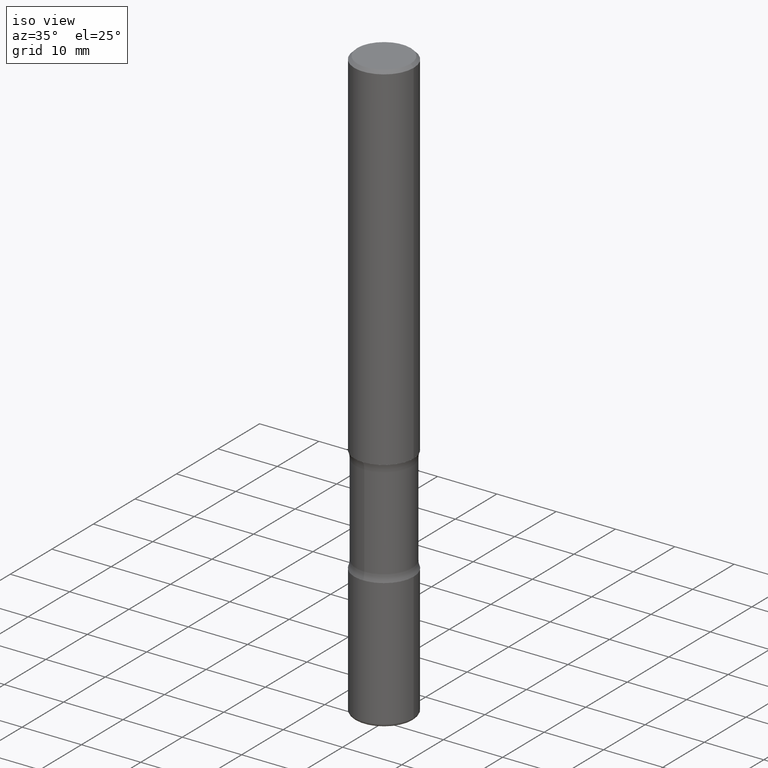
[diagram: clean part render]
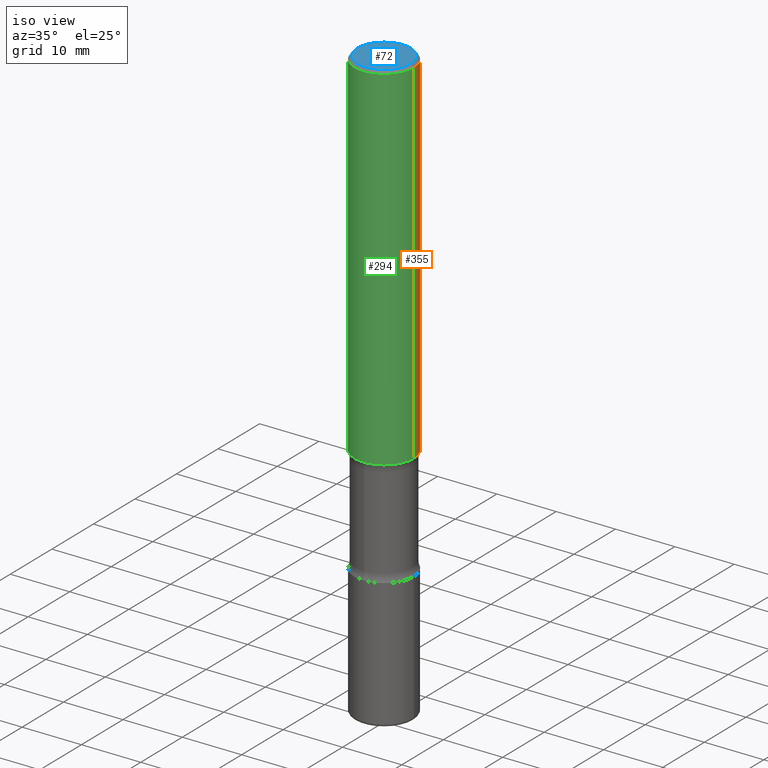
[diagram: same view with three faces highlighted in distinct colors, each labeled with its STEP entity id]
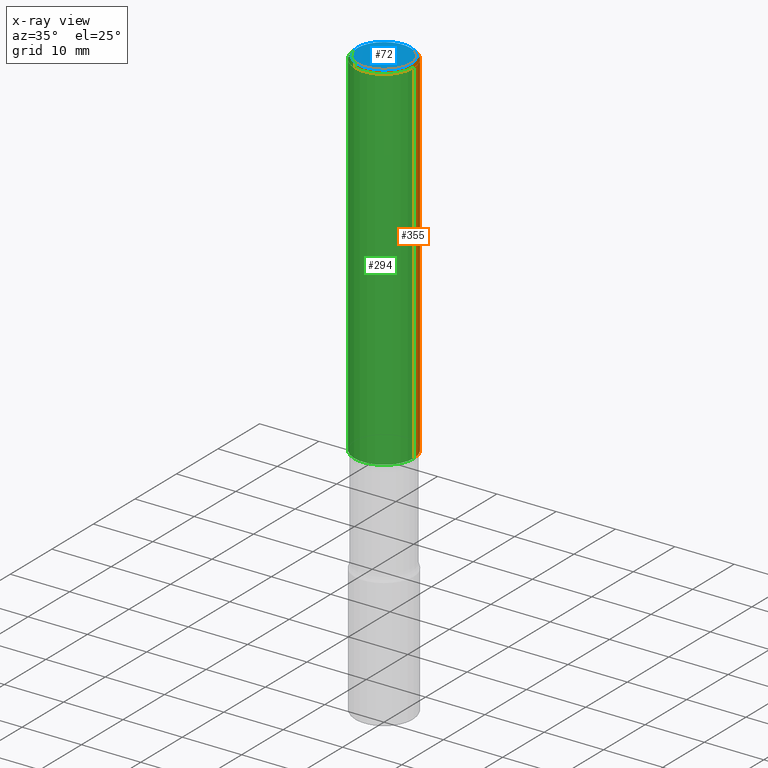
[diagram: x-ray of the same camera — body ghosted, the three highlighted faces saturated]
A machine part, iso view with three faces highlighted in distinct colors.
The next image is the same camera in x-ray (body ghosted, the three faces saturated) — at least one of them is partly hidden behind the body in this view.
Their STEP definitions:

[orange] entity #355 — the highlighted cylindrical surface (edge-blend (fillet) strip) has radius 5 mm, axis along (-0, 0, 1).
#6 = DIRECTION ( 'NONE',  ( 1.000000000000000000, -6.982962677686265133E-15, 0.000000000000000000 ) ) ;
#20 = CIRCLE ( 'NONE', #486, 0.1968499999999999417 ) ;
#23 = ORIENTED_EDGE ( 'NONE', *, *, #318, .T. ) ;
#33 = CARTESIAN_POINT ( 'NONE',  ( 4.890937612370289799E-31, -6.982962677686315028E-17, -0.02000000000000006981 ) ) ;
#47 = ORIENTED_EDGE ( 'NONE', *, *, #524, .F. ) ;
#55 = DIRECTION ( 'NONE',  ( -2.445468806185136877E-29, 3.491481338843145188E-15, 1.000000000000000000 ) ) ;
#64 = EDGE_CURVE ( 'NONE', #466, #215, #20, .T. ) ;
#88 = DIRECTION ( 'NONE',  ( 1.000000000000000000, -6.982962677686266711E-15, 0.000000000000000000 ) ) ;
#98 = VERTEX_POINT ( 'NONE', #511 ) ;
#101 = VERTEX_POINT ( 'NONE', #522 ) ;
#111 = ORIENTED_EDGE ( 'NONE', *, *, #113, .T. ) ;
#113 = EDGE_CURVE ( 'NONE', #101, #215, #138, .T. ) ;
#138 = LINE ( 'NONE', #307, #546 ) ;
#154 = CIRCLE ( 'NONE', #519, 0.1968500000000001082 ) ;
#162 = CYLINDRICAL_SURFACE ( 'NONE', #365, 0.1968500000000000527 ) ;
#173 = ORIENTED_EDGE ( 'NONE', *, *, #64, .F. ) ;
#215 = VERTEX_POINT ( 'NONE', #249 ) ;
#249 = CARTESIAN_POINT ( 'NONE',  ( -0.1968499999999999417, 1.304766576325678113E-15, -0.02000000000000006981 ) ) ;
#299 = DIRECTION ( 'NONE',  ( -2.445468806185136597E-29, 3.491481338843145583E-15, 1.000000000000000000 ) ) ;
#307 = CARTESIAN_POINT ( 'NONE',  ( -0.1968500000000000527, 1.398703375343757590E-15, -9.682923725166785079E-30 ) ) ;
#318 = EDGE_CURVE ( 'NONE', #98, #101, #154, .T. ) ;
#329 = CARTESIAN_POINT ( 'NONE',  ( 0.000000000000000000, 0.000000000000000000, 0.000000000000000000 ) ) ;
#355 = ADVANCED_FACE ( 'NONE', ( #459 ), #162, .T. ) ;
#365 = AXIS2_PLACEMENT_3D ( 'NONE', #329, #412, #370 ) ;
#370 = DIRECTION ( 'NONE',  ( 1.000000000000000000, -6.982962677686266711E-15, 4.876176775795935793E-29 ) ) ;
#412 = DIRECTION ( 'NONE',  ( -2.445468806185136597E-29, 3.491481338843145583E-15, 1.000000000000000000 ) ) ;
#415 = DIRECTION ( 'NONE',  ( -2.445468806185136597E-29, 3.491481338843145583E-15, 1.000000000000000000 ) ) ;
#428 = DIRECTION ( 'NONE',  ( -2.445468806185136877E-29, 3.491481338843145188E-15, 1.000000000000000000 ) ) ;
#432 = CARTESIAN_POINT ( 'NONE',  ( 0.1968500000000000527, -1.374596203102542003E-15, 9.598753983154302260E-30 ) ) ;
#459 = FACE_OUTER_BOUND ( 'NONE', #461, .T. ) ;
#461 = EDGE_LOOP ( 'NONE', ( #23, #111, #173, #47 ) ) ;
#466 = VERTEX_POINT ( 'NONE', #537 ) ;
#469 = CARTESIAN_POINT ( 'NONE',  ( 5.776686413970529753E-29, -8.247577218615279626E-15, -2.362200000000000077 ) ) ;
#478 = VECTOR ( 'NONE', #55, 39.37007874015748143 ) ;
#486 = AXIS2_PLACEMENT_3D ( 'NONE', #33, #415, #88 ) ;
#511 = CARTESIAN_POINT ( 'NONE',  ( 0.1968500000000001082, -9.622173421717821235E-15, -2.362200000000000077 ) ) ;
#519 = AXIS2_PLACEMENT_3D ( 'NONE', #469, #299, #6 ) ;
#522 = CARTESIAN_POINT ( 'NONE',  ( -0.1968500000000001360, -2.760000047352310125E-15, -2.362200000000000077 ) ) ;
#524 = EDGE_CURVE ( 'NONE', #98, #466, #542, .T. ) ;
#537 = CARTESIAN_POINT ( 'NONE',  ( 0.1968499999999999417, -1.420318657638188727E-15, -0.02000000000000006981 ) ) ;
#542 = LINE ( 'NONE', #432, #478 ) ;
#546 = VECTOR ( 'NONE', #428, 39.37007874015748143 ) ;

[blue] entity #72 — the highlighted planar face has unit normal (0, -0, -1).
#8 = DIRECTION ( 'NONE',  ( 1.000000000000000000, -6.982962677686266711E-15, 4.875932113059880811E-29 ) ) ;
#13 = VERTEX_POINT ( 'NONE', #549 ) ;
#53 = AXIS2_PLACEMENT_3D ( 'NONE', #259, #298, #8 ) ;
#72 = ADVANCED_FACE ( 'NONE', ( #507 ), #123, .F. ) ;
#84 = DIRECTION ( 'NONE',  ( 2.438088387897960049E-29, -3.491481338843145188E-15, -1.000000000000000000 ) ) ;
#107 = VERTEX_POINT ( 'NONE', #289 ) ;
#123 = PLANE ( 'NONE',  #239 ) ;
#141 = ORIENTED_EDGE ( 'NONE', *, *, #231, .T. ) ;
#189 = EDGE_CURVE ( 'NONE', #107, #13, #384, .T. ) ;
#208 = DIRECTION ( 'NONE',  ( -1.000000000000000000, 6.982962677686265922E-15, -4.876176775795935793E-29 ) ) ;
#231 = EDGE_CURVE ( 'NONE', #13, #107, #535, .T. ) ;
#232 = ORIENTED_EDGE ( 'NONE', *, *, #189, .T. ) ;
#239 = AXIS2_PLACEMENT_3D ( 'NONE', #467, #84, #208 ) ;
#259 = CARTESIAN_POINT ( 'NONE',  ( -1.043851414335219820E-46, 1.490343170380447200E-32, 4.268512490100411279E-18 ) ) ;
#289 = CARTESIAN_POINT ( 'NONE',  ( 0.1768499999999998962, -1.316798864272041549E-15, 4.268512490109333727E-18 ) ) ;
#298 = DIRECTION ( 'NONE',  ( -2.445468806185136597E-29, 3.491481338843145583E-15, 1.000000000000000000 ) ) ;
#384 = CIRCLE ( 'NONE', #416, 0.1768499999999998962 ) ;
#416 = AXIS2_PLACEMENT_3D ( 'NONE', #534, #539, #494 ) ;
#467 = CARTESIAN_POINT ( 'NONE',  ( 1.234936949548815209E-15, 0.1768499999999998962, -6.153342185293597578E-16 ) ) ;
#492 = EDGE_LOOP ( 'NONE', ( #141, #232 ) ) ;
#494 = DIRECTION ( 'NONE',  ( 1.000000000000000000, -6.982962677686266711E-15, 4.875932113059880811E-29 ) ) ;
#507 = FACE_OUTER_BOUND ( 'NONE', #492, .T. ) ;
#534 = CARTESIAN_POINT ( 'NONE',  ( -1.043851414335219820E-46, 1.490343170380447200E-32, 4.268512490100411279E-18 ) ) ;
#535 = CIRCLE ( 'NONE', #53, 0.1768499999999998962 ) ;
#539 = DIRECTION ( 'NONE',  ( -2.445468806185136597E-29, 3.491481338843145583E-15, 1.000000000000000000 ) ) ;
#549 = CARTESIAN_POINT ( 'NONE',  ( -0.1768499999999998962, 1.269851762937246858E-15, 4.268512490091652920E-18 ) ) ;

[green] entity #294 — the highlighted cylindrical surface (edge-blend (fillet) strip) has radius 5 mm, axis along (-0, 0, 1).
#2 = DIRECTION ( 'NONE',  ( -2.445468806185136597E-29, 3.491481338843145583E-15, 1.000000000000000000 ) ) ;
#9 = DIRECTION ( 'NONE',  ( 1.000000000000000000, -6.982962677686266711E-15, 0.000000000000000000 ) ) ;
#27 = FACE_OUTER_BOUND ( 'NONE', #541, .T. ) ;
#45 = DIRECTION ( 'NONE',  ( 1.000000000000000000, -6.982962677686266711E-15, 4.876176775795935793E-29 ) ) ;
#49 = DIRECTION ( 'NONE',  ( -2.445468806185136597E-29, 3.491481338843145583E-15, 1.000000000000000000 ) ) ;
#55 = DIRECTION ( 'NONE',  ( -2.445468806185136877E-29, 3.491481338843145188E-15, 1.000000000000000000 ) ) ;
#60 = CIRCLE ( 'NONE', #109, 0.1968500000000001082 ) ;
#75 = ORIENTED_EDGE ( 'NONE', *, *, #524, .T. ) ;
#92 = DIRECTION ( 'NONE',  ( 1.000000000000000000, -6.982962677686265133E-15, 0.000000000000000000 ) ) ;
#98 = VERTEX_POINT ( 'NONE', #511 ) ;
#101 = VERTEX_POINT ( 'NONE', #522 ) ;
#106 = EDGE_CURVE ( 'NONE', #215, #466, #556, .T. ) ;
#109 = AXIS2_PLACEMENT_3D ( 'NONE', #210, #421, #92 ) ;
#113 = EDGE_CURVE ( 'NONE', #101, #215, #138, .T. ) ;
#138 = LINE ( 'NONE', #307, #546 ) ;
#163 = EDGE_CURVE ( 'NONE', #101, #98, #60, .T. ) ;
#188 = AXIS2_PLACEMENT_3D ( 'NONE', #192, #2, #45 ) ;
#192 = CARTESIAN_POINT ( 'NONE',  ( 0.000000000000000000, 0.000000000000000000, 0.000000000000000000 ) ) ;
#206 = AXIS2_PLACEMENT_3D ( 'NONE', #260, #49, #9 ) ;
#210 = CARTESIAN_POINT ( 'NONE',  ( 5.776686413970529753E-29, -8.247577218615279626E-15, -2.362200000000000077 ) ) ;
#215 = VERTEX_POINT ( 'NONE', #249 ) ;
#223 = ORIENTED_EDGE ( 'NONE', *, *, #113, .F. ) ;
#249 = CARTESIAN_POINT ( 'NONE',  ( -0.1968499999999999417, 1.304766576325678113E-15, -0.02000000000000006981 ) ) ;
#260 = CARTESIAN_POINT ( 'NONE',  ( 4.890937612370289799E-31, -6.982962677686315028E-17, -0.02000000000000006981 ) ) ;
#294 = ADVANCED_FACE ( 'NONE', ( #27 ), #554, .T. ) ;
#307 = CARTESIAN_POINT ( 'NONE',  ( -0.1968500000000000527, 1.398703375343757590E-15, -9.682923725166785079E-30 ) ) ;
#383 = ORIENTED_EDGE ( 'NONE', *, *, #106, .F. ) ;
#402 = ORIENTED_EDGE ( 'NONE', *, *, #163, .T. ) ;
#421 = DIRECTION ( 'NONE',  ( -2.445468806185136597E-29, 3.491481338843145583E-15, 1.000000000000000000 ) ) ;
#428 = DIRECTION ( 'NONE',  ( -2.445468806185136877E-29, 3.491481338843145188E-15, 1.000000000000000000 ) ) ;
#432 = CARTESIAN_POINT ( 'NONE',  ( 0.1968500000000000527, -1.374596203102542003E-15, 9.598753983154302260E-30 ) ) ;
#466 = VERTEX_POINT ( 'NONE', #537 ) ;
#478 = VECTOR ( 'NONE', #55, 39.37007874015748143 ) ;
#511 = CARTESIAN_POINT ( 'NONE',  ( 0.1968500000000001082, -9.622173421717821235E-15, -2.362200000000000077 ) ) ;
#522 = CARTESIAN_POINT ( 'NONE',  ( -0.1968500000000001360, -2.760000047352310125E-15, -2.362200000000000077 ) ) ;
#524 = EDGE_CURVE ( 'NONE', #98, #466, #542, .T. ) ;
#537 = CARTESIAN_POINT ( 'NONE',  ( 0.1968499999999999417, -1.420318657638188727E-15, -0.02000000000000006981 ) ) ;
#541 = EDGE_LOOP ( 'NONE', ( #223, #402, #75, #383 ) ) ;
#542 = LINE ( 'NONE', #432, #478 ) ;
#546 = VECTOR ( 'NONE', #428, 39.37007874015748143 ) ;
#554 = CYLINDRICAL_SURFACE ( 'NONE', #188, 0.1968500000000000527 ) ;
#556 = CIRCLE ( 'NONE', #206, 0.1968499999999999417 ) ;